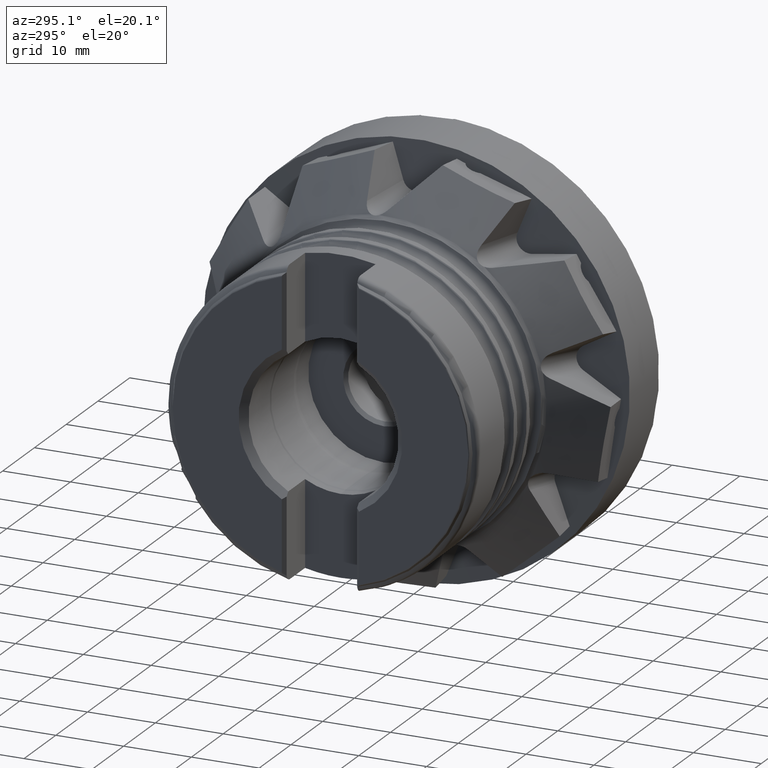
[diagram: clean part render]
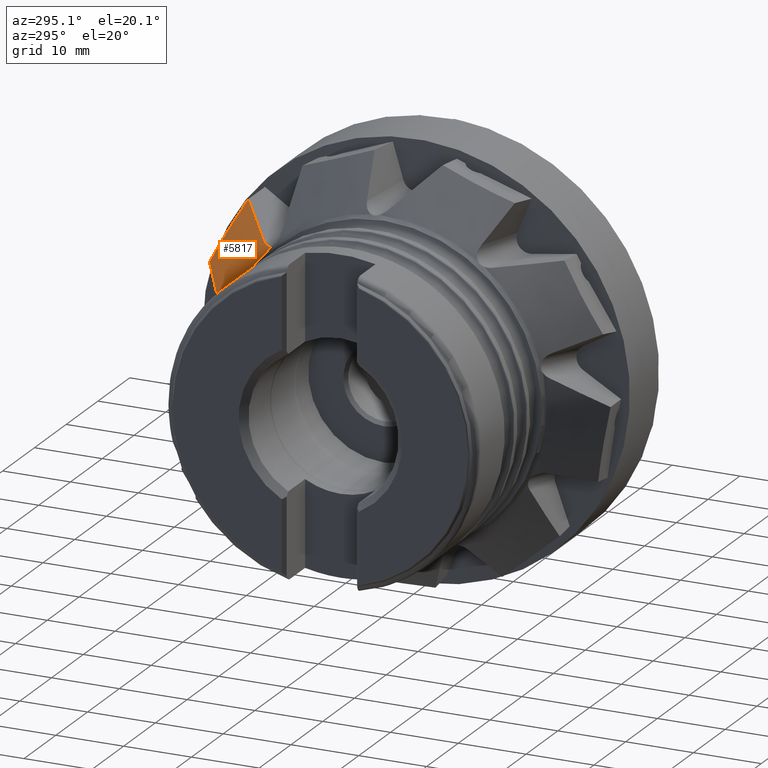
[diagram: same view with one face highlighted and labeled with its STEP entity id]
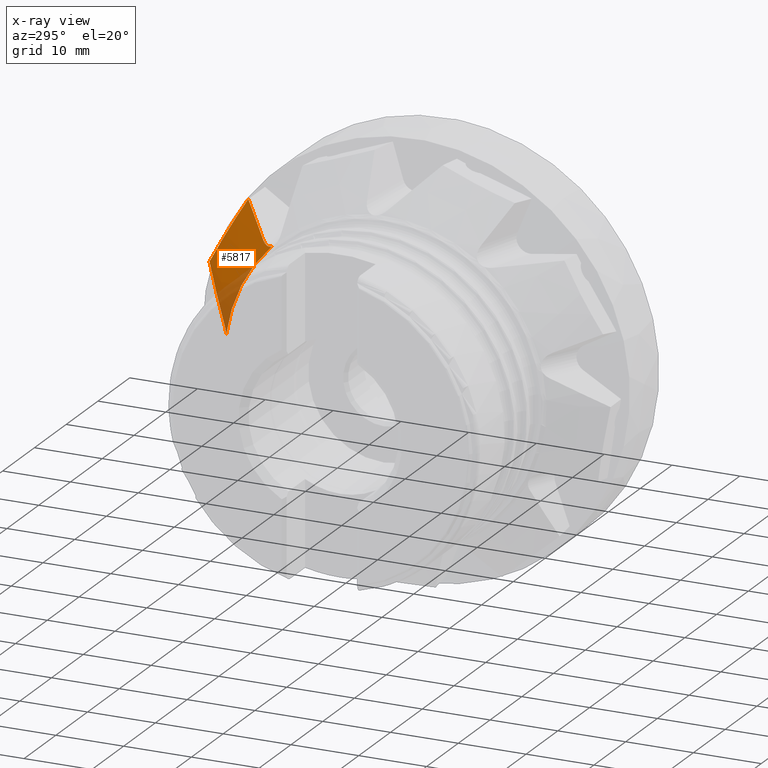
[diagram: x-ray of the same camera — body ghosted, the highlighted face saturated]
A machine part, auxiliary view. The second image highlights one B-rep face of the part: STEP entity #5817.
The next image is the same camera in x-ray: the body ghosted, the highlighted face saturated — about 20% of this face is hidden behind the body in this view.
In plain terms, the highlighted conical surface has half-angle 51.154 deg.
Its self-contained STEP definition (entity closure, byte-faithful):
#54 = CARTESIAN_POINT ( 'NONE',  ( -17.66959787476907800, 18.58927320688235000, 17.01664396990074100 ) ) ;
#173 = CARTESIAN_POINT ( 'NONE',  ( -18.44829792212164000, 17.65314453804068200, 16.60419393607618200 ) ) ;
#251 = DIRECTION ( 'NONE',  ( 0.0000000000000000000, 0.0000000000000000000, -1.000000000000000000 ) ) ;
#334 = CARTESIAN_POINT ( 'NONE',  ( -17.78534429975750800, 18.47881121473500300, 16.92446000180240500 ) ) ;
#400 = EDGE_CURVE ( 'NONE', #6840, #936, #3206, .T. ) ;
#523 = EDGE_LOOP ( 'NONE', ( #3757, #6088, #7294, #5679, #3808, #2439 ) ) ;
#553 = CARTESIAN_POINT ( 'NONE',  ( -18.71833285995450100, 17.16475304778310500, 16.63050545259793700 ) ) ;
#619 = CARTESIAN_POINT ( 'NONE',  ( -18.38603016533243600, 23.94405422262632000, 4.214506008341566600 ) ) ;
#657 = CARTESIAN_POINT ( 'NONE',  ( -14.61931886738448900, 21.49990670211576600, 19.44575696862776900 ) ) ;
#694 = AXIS2_PLACEMENT_3D ( 'NONE', #3099, #7845, #7145 ) ;
#885 = FACE_OUTER_BOUND ( 'NONE', #523, .T. ) ;
#936 = VERTEX_POINT ( 'NONE', #7249 ) ;
#1037 = CARTESIAN_POINT ( 'NONE',  ( -17.66959787476907800, 18.58927320688235000, 17.01664396990074100 ) ) ;
#1147 = CARTESIAN_POINT ( 'NONE',  ( -13.32014907429244000, 28.56793349827730200, 10.97197693526582200 ) ) ;
#1345 = CARTESIAN_POINT ( 'NONE',  ( -13.09395926139060200, 22.95503733854951300, 20.66026003837728800 ) ) ;
#1346 = VERTEX_POINT ( 'NONE', #4706 ) ;
#1519 = CARTESIAN_POINT ( 'NONE',  ( -18.79117429067235200, 16.99499457512715100, 16.67544100968920900 ) ) ;
#1671 = AXIS2_PLACEMENT_3D ( 'NONE', #8340, #4263, #251 ) ;
#1684 = CARTESIAN_POINT ( 'NONE',  ( -13.32014907429244000, 28.56793349827730200, 10.97197693526582200 ) ) ;
#1819 = CARTESIAN_POINT ( 'NONE',  ( -13.63573403927998700, 26.72207101366805300, 14.21589780351088500 ) ) ;
#2110 = CARTESIAN_POINT ( 'NONE',  ( -18.84233078654613500, 16.83044521601042100, 16.75072671924042600 ) ) ;
#2439 = ORIENTED_EDGE ( 'NONE', *, *, #400, .F. ) ;
#2494 = CARTESIAN_POINT ( 'NONE',  ( -13.38889592127873700, 23.90703597474528100, 19.05508167194245000 ) ) ;
#2543 = EDGE_CURVE ( 'NONE', #1346, #7151, #7873, .T. ) ;
#2626 = CIRCLE ( 'NONE', #1671, 23.74554130340690300 ) ;
#2629 = CARTESIAN_POINT ( 'NONE',  ( -15.07509271265155900, 27.05742757283539400, 8.748278883448490400 ) ) ;
#2811 = EDGE_CURVE ( 'NONE', #5031, #6840, #4889, .T. ) ;
#3099 = CARTESIAN_POINT ( 'NONE',  ( -13.00000000000000000, 0.0000000000000000000, 0.0000000000000000000 ) ) ;
#3206 = B_SPLINE_CURVE_WITH_KNOTS ( 'NONE', 3,
 ( #1037, #334, #7798, #6429, #5267, #173, #7612, #553, #1519, #2110 ),
 .UNSPECIFIED., .F., .F.,
 ( 4, 2, 2, 2, 4 ),
 ( 0.0003391083507497643800, 0.0008921913469544036500, 0.001445274343159042900, 0.001998357339363682200, 0.002551440335568321700 ),
 .UNSPECIFIED. ) ;
#3301 = CARTESIAN_POINT ( 'NONE',  ( -13.32014907429244000, 28.56793349827730200, 10.97197693526582200 ) ) ;
#3721 = B_SPLINE_CURVE_WITH_KNOTS ( 'NONE', 3,
 ( #1147, #8576, #1819, #6547, #2494, #7230 ),
 .UNSPECIFIED., .F., .F.,
 ( 4, 2, 4 ),
 ( 0.002204214959744986100, 0.007802588642851961800, 0.01340096232595894300 ),
 .UNSPECIFIED. ) ;
#3755 = CARTESIAN_POINT ( 'NONE',  ( -18.57231065105808900, 23.76002424085236700, 3.920508800518800000 ) ) ;
#3757 = ORIENTED_EDGE ( 'NONE', *, *, #2811, .F. ) ;
#3808 = ORIENTED_EDGE ( 'NONE', *, *, #8746, .T. ) ;
#4074 = CARTESIAN_POINT ( 'NONE',  ( -16.14456512270328400, 20.04468019591027400, 18.23122636913604900 ) ) ;
#4107 = CARTESIAN_POINT ( 'NONE',  ( -17.66959787476907800, 18.58927320688235000, 17.01664396990074100 ) ) ;
#4263 = DIRECTION ( 'NONE',  ( 1.000000000000000000, -0.0000000000000000000, -0.0000000000000000000 ) ) ;
#4281 = CARTESIAN_POINT ( 'NONE',  ( -18.79324399637578900, 23.56076084221962200, 3.416557496323952200 ) ) ;
#4445 = CARTESIAN_POINT ( 'NONE',  ( -18.38603016533243600, 23.94405422262632000, 4.214506008341566600 ) ) ;
#4652 = CARTESIAN_POINT ( 'NONE',  ( -17.59479774590312600, 24.73934341207119700, 5.363797042355416000 ) ) ;
#4664 = CARTESIAN_POINT ( 'NONE',  ( -13.09395926139060200, 22.95503733854951300, 20.66026003837728800 ) ) ;
#4706 = CARTESIAN_POINT ( 'NONE',  ( -18.84233078654613900, 23.52515106854678400, 3.227692518480486300 ) ) ;
#4889 = B_SPLINE_CURVE_WITH_KNOTS ( 'NONE', 3,
 ( #1345, #657, #4074, #54 ),
 .UNSPECIFIED., .F., .F.,
 ( 4, 4 ),
 ( 0.0001501825882127587500, 0.007448970379691586400 ),
 .UNSPECIFIED. ) ;
#5031 = VERTEX_POINT ( 'NONE', #4664 ) ;
#5267 = CARTESIAN_POINT ( 'NONE',  ( -18.23929096518118300, 17.95320354851004300, 16.66318386107751300 ) ) ;
#5679 = ORIENTED_EDGE ( 'NONE', *, *, #2543, .F. ) ;
#5817 = ADVANCED_FACE ( 'NONE', ( #885 ), #7448, .T. ) ;
#6088 = ORIENTED_EDGE ( 'NONE', *, *, #8447, .F. ) ;
#6161 = CARTESIAN_POINT ( 'NONE',  ( -18.38603016533243600, 23.94405422262632000, 4.214506008341566600 ) ) ;
#6429 = CARTESIAN_POINT ( 'NONE',  ( -18.12765752012113700, 18.09550250385363800, 16.71337680554084300 ) ) ;
#6547 = CARTESIAN_POINT ( 'NONE',  ( -13.55920157120004400, 24.85103269916063000, 17.44528339958715800 ) ) ;
#6683 = CARTESIAN_POINT ( 'NONE',  ( -16.76973774943076700, 25.51892831150548000, 6.498401373800687600 ) ) ;
#6840 = VERTEX_POINT ( 'NONE', #4107 ) ;
#7130 = CARTESIAN_POINT ( 'NONE',  ( -18.84233078654613900, 23.52515106854678400, 3.227692518480486300 ) ) ;
#7145 = DIRECTION ( 'NONE',  ( 0.0000000000000000000, 0.0000000000000000000, -1.000000000000000000 ) ) ;
#7151 = VERTEX_POINT ( 'NONE', #6161 ) ;
#7230 = CARTESIAN_POINT ( 'NONE',  ( -13.09395926139060200, 22.95503733854951300, 20.66026003837728800 ) ) ;
#7249 = CARTESIAN_POINT ( 'NONE',  ( -18.84233078654613500, 16.83044521601042100, 16.75072671924042600 ) ) ;
#7294 = ORIENTED_EDGE ( 'NONE', *, *, #7984, .F. ) ;
#7369 = CARTESIAN_POINT ( 'NONE',  ( -14.20532995369432600, 27.81625942970197900, 9.863474902682286300 ) ) ;
#7448 = CONICAL_SURFACE ( 'NONE', #694, 30.99999999999995000, 0.8928056660857351900 ) ;
#7612 = CARTESIAN_POINT ( 'NONE',  ( -18.54784275205456700, 17.49190908199609900, 16.59516131710774200 ) ) ;
#7798 = CARTESIAN_POINT ( 'NONE',  ( -17.90020420089606600, 18.35873193582271800, 16.84443781377461100 ) ) ;
#7829 = CARTESIAN_POINT ( 'NONE',  ( -18.72751438418038100, 23.61709242749579500, 3.591327816298256300 ) ) ;
#7845 = DIRECTION ( 'NONE',  ( 1.000000000000000000, -0.0000000000000000000, -0.0000000000000000000 ) ) ;
#7873 = B_SPLINE_CURVE_WITH_KNOTS ( 'NONE', 3,
 ( #7130, #4281, #7829, #3755, #8515, #4445 ),
 .UNSPECIFIED., .F., .F.,
 ( 4, 2, 4 ),
 ( 7.945549052238298200E-007, 0.0005855494158890343500, 0.001170304276872845000 ),
 .UNSPECIFIED. ) ;
#7984 = EDGE_CURVE ( 'NONE', #7151, #8381, #8184, .T. ) ;
#8184 = B_SPLINE_CURVE_WITH_KNOTS ( 'NONE', 3,
 ( #619, #4652, #6683, #2629, #7369, #3301 ),
 .UNSPECIFIED., .F., .F.,
 ( 4, 2, 4 ),
 ( 0.0001273235406418084600, 0.004941538759561437700, 0.009755753978481064200 ),
 .UNSPECIFIED. ) ;
#8340 = CARTESIAN_POINT ( 'NONE',  ( -18.84233078654614200, 0.0000000000000000000, 0.0000000000000000000 ) ) ;
#8381 = VERTEX_POINT ( 'NONE', #1684 ) ;
#8447 = EDGE_CURVE ( 'NONE', #8381, #5031, #3721, .T. ) ;
#8515 = CARTESIAN_POINT ( 'NONE',  ( -18.48209332452273300, 23.84749853287959800, 4.074971119672455600 ) ) ;
#8576 = CARTESIAN_POINT ( 'NONE',  ( -13.54191057461452800, 27.64910937536036400, 12.59630861587242000 ) ) ;
#8746 = EDGE_CURVE ( 'NONE', #1346, #936, #2626, .T. ) ;